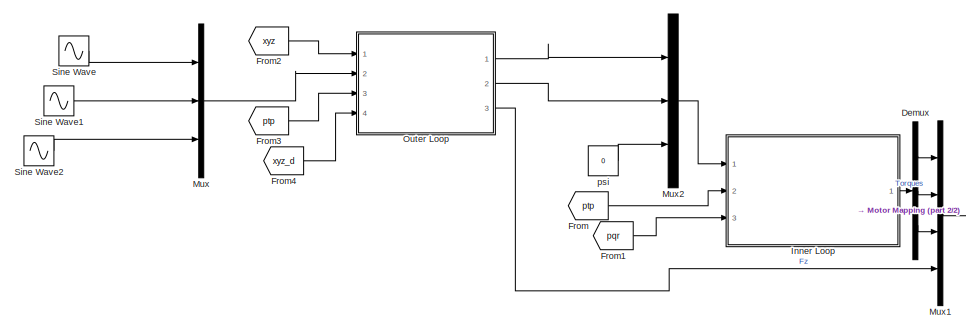
[diagram: root canvas - part 1/2, left side, full height]
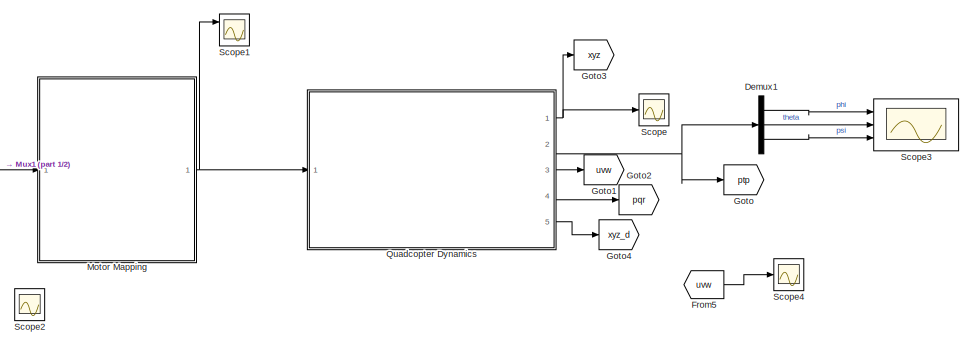
[diagram: root canvas - part 2/2, right side, full height]
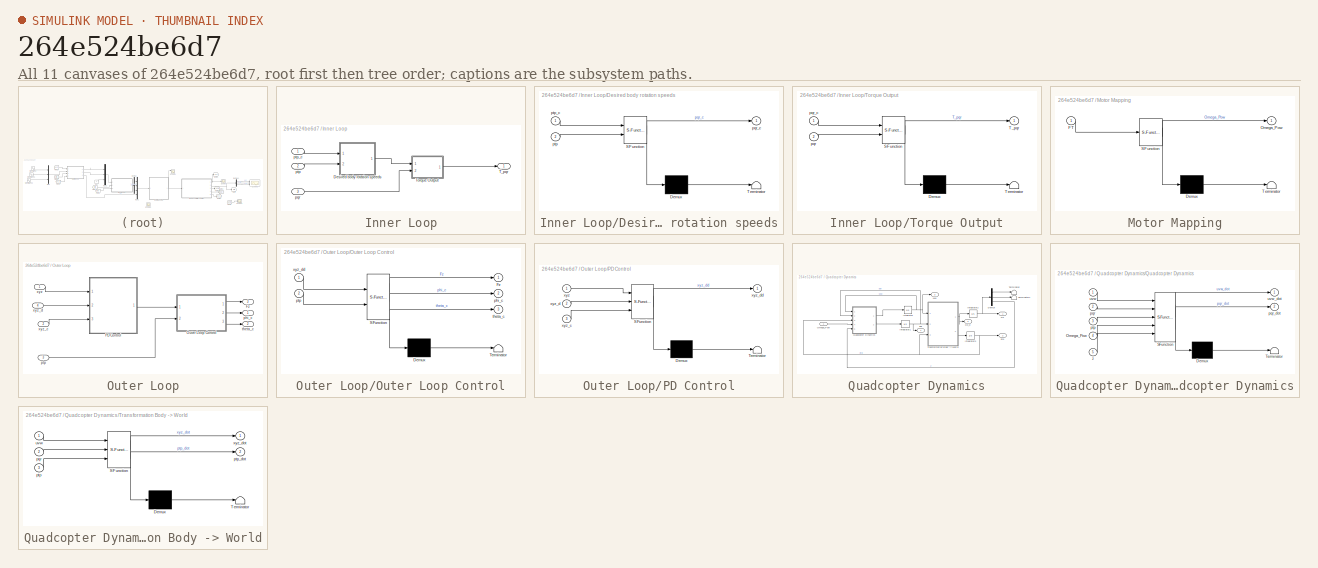
[diagram: thumbnail index - all 11 canvases of the model, root first then tree order]
MODEL slx_264e524be6d7
KIND model
CONFIG AbsTol = auto
CONFIG EnableMultiTasking = off
CONFIG FixedStep = auto
CONFIG MaxStep = auto
CONFIG MinStep = auto
CONFIG RelTol = 1e-3
CONFIG SampleTimeConstraint = Unconstrained
CONFIG Solver = VariableStepAuto
CONFIG SolverName = VariableStepAuto
CONFIG StartTime = 0.0
CONFIG StopTime = 10.0
BLOCK [Demux] Demux
  DisplayOption = bar
  Outputs = 3
  Ports = [1, 3]
BLOCK [Demux] Demux1
  DisplayOption = bar
  Outputs = 3
  Ports = [1, 3]
BLOCK [From] From
  GotoTag = ptp
BLOCK [From] From1
  GotoTag = pqr
BLOCK [From] From2
  GotoTag = xyz
BLOCK [From] From3
  GotoTag = ptp
BLOCK [From] From4
  GotoTag = xyz_d
BLOCK [From] From5
  GotoTag = uvw
BLOCK [Goto] Goto
  GotoTag = ptp
BLOCK [Goto] Goto1
  GotoTag = uvw
BLOCK [Goto] Goto2
  GotoTag = pqr
BLOCK [Goto] Goto3
  GotoTag = xyz
BLOCK [Goto] Goto4
  GotoTag = xyz_d
BLOCK [SubSystem] Inner Loop
  Ports = [3, 1]
  RequestExecContextInheritance = off
BLOCK [SubSystem] Inner Loop/Desired body rotation speeds
  ErrorFcn = Stateflow.Translate.translate
  PermitHierarchicalResolution = ExplicitOnly
  Ports = [2, 1]
  RequestExecContextInheritance = off
  SFBlockType = MATLAB Function
  TreatAsAtomicUnit = on
BLOCK [Demux] Inner Loop/Desired body rotation speeds/ Demux 
  Outputs = 1
  Ports = [1, 1]
BLOCK [S-Function] Inner Loop/Desired body rotation speeds/ SFunction 
  EnableBusSupport = on
  FunctionName = sf_sfun
  PortCounts = [2 2]
  Ports = [2, 2]
  SFcnIsStateOwnerBlock = off
  SFunctionDeploymentMode = off
  Tag = Stateflow S-Function 4
BLOCK [Terminator] Inner Loop/Desired body rotation speeds/ Terminator 
BLOCK [Outport] Inner Loop/Desired body rotation speeds/pqr_c
  IconDisplay = Port number
BLOCK [Inport] Inner Loop/Desired body rotation speeds/ptp
  IconDisplay = Port number
  Port = 2
BLOCK [Inport] Inner Loop/Desired body rotation speeds/ptp_c
  IconDisplay = Port number
BLOCK [Outport] Inner Loop/T_pqr
  IconDisplay = Port number
BLOCK [SubSystem] Inner Loop/Torque Output
  ErrorFcn = Stateflow.Translate.translate
  PermitHierarchicalResolution = ExplicitOnly
  Ports = [2, 1]
  RequestExecContextInheritance = off
  SFBlockType = MATLAB Function
  TreatAsAtomicUnit = on
BLOCK [Demux] Inner Loop/Torque Output/ Demux 
  Outputs = 1
  Ports = [1, 1]
BLOCK [S-Function] Inner Loop/Torque Output/ SFunction 
  EnableBusSupport = on
  FunctionName = sf_sfun
  PortCounts = [2 2]
  Ports = [2, 2]
  SFcnIsStateOwnerBlock = off
  SFunctionDeploymentMode = off
  Tag = Stateflow S-Function 5
BLOCK [Terminator] Inner Loop/Torque Output/ Terminator 
BLOCK [Outport] Inner Loop/Torque Output/T_pqr
  IconDisplay = Port number
BLOCK [Inport] Inner Loop/Torque Output/pqr
  IconDisplay = Port number
  Port = 2
BLOCK [Inport] Inner Loop/Torque Output/pqr_c
  IconDisplay = Port number
BLOCK [Inport] Inner Loop/pqr
  IconDisplay = Port number
  Port = 3
BLOCK [Inport] Inner Loop/ptp
  IconDisplay = Port number
  Port = 2
BLOCK [Inport] Inner Loop/ptp_c
  IconDisplay = Port number
BLOCK [SubSystem] Motor Mapping
  ErrorFcn = Stateflow.Translate.translate
  PermitHierarchicalResolution = ExplicitOnly
  Ports = [1, 1]
  RequestExecContextInheritance = off
  SFBlockType = MATLAB Function
  TreatAsAtomicUnit = on
BLOCK [Demux] Motor Mapping/ Demux 
  Outputs = 1
  Ports = [1, 1]
BLOCK [S-Function] Motor Mapping/ SFunction 
  EnableBusSupport = on
  FunctionName = sf_sfun
  PortCounts = [1 2]
  Ports = [1, 2]
  SFcnIsStateOwnerBlock = off
  SFunctionDeploymentMode = off
  Tag = Stateflow S-Function 3
BLOCK [Terminator] Motor Mapping/ Terminator 
BLOCK [Inport] Motor Mapping/FT
  IconDisplay = Port number
BLOCK [Outport] Motor Mapping/Omega_Pow
  IconDisplay = Port number
BLOCK [Mux] Mux
  DisplayOption = bar
  Inputs = 3
  Ports = [3, 1]
BLOCK [Mux] Mux1
  DisplayOption = bar
  Ports = [4, 1]
BLOCK [Mux] Mux2
  DisplayOption = bar
  Inputs = 3
  Ports = [3, 1]
BLOCK [SubSystem] Outer Loop
  Ports = [4, 3]
  RequestExecContextInheritance = off
BLOCK [Outport] Outer Loop/Fz
  IconDisplay = Port number
  Port = 3
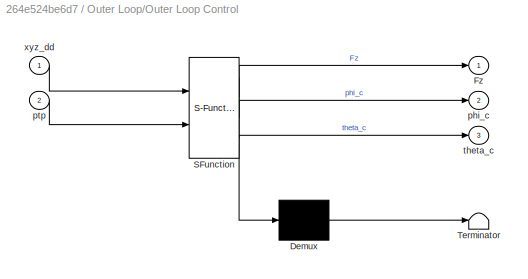
BLOCK [SubSystem] Outer Loop/Outer Loop Control
  ErrorFcn = Stateflow.Translate.translate
  PermitHierarchicalResolution = ExplicitOnly
  Ports = [2, 3]
  RequestExecContextInheritance = off
  SFBlockType = MATLAB Function
  TreatAsAtomicUnit = on
BLOCK [Demux] Outer Loop/Outer Loop Control/ Demux 
  Outputs = 1
  Ports = [1, 1]
BLOCK [S-Function] Outer Loop/Outer Loop Control/ SFunction 
  EnableBusSupport = on
  FunctionName = sf_sfun
  PortCounts = [2 4]
  Ports = [2, 4]
  SFcnIsStateOwnerBlock = off
  SFunctionDeploymentMode = off
  Tag = Stateflow S-Function 6
BLOCK [Terminator] Outer Loop/Outer Loop Control/ Terminator 
BLOCK [Outport] Outer Loop/Outer Loop Control/Fz
  IconDisplay = Port number
BLOCK [Outport] Outer Loop/Outer Loop Control/phi_c
  IconDisplay = Port number
  Port = 2
BLOCK [Inport] Outer Loop/Outer Loop Control/ptp
  IconDisplay = Port number
  Port = 2
BLOCK [Outport] Outer Loop/Outer Loop Control/theta_c
  IconDisplay = Port number
  Port = 3
BLOCK [Inport] Outer Loop/Outer Loop Control/xyz_dd
  IconDisplay = Port number
BLOCK [SubSystem] Outer Loop/PD Control
  ErrorFcn = Stateflow.Translate.translate
  PermitHierarchicalResolution = ExplicitOnly
  Ports = [3, 1]
  RequestExecContextInheritance = off
  SFBlockType = MATLAB Function
  TreatAsAtomicUnit = on
BLOCK [Demux] Outer Loop/PD Control/ Demux 
  Outputs = 1
  Ports = [1, 1]
BLOCK [S-Function] Outer Loop/PD Control/ SFunction 
  EnableBusSupport = on
  FunctionName = sf_sfun
  PortCounts = [3 2]
  Ports = [3, 2]
  SFcnIsStateOwnerBlock = off
  SFunctionDeploymentMode = off
  Tag = Stateflow S-Function 7
BLOCK [Terminator] Outer Loop/PD Control/ Terminator 
BLOCK [Inport] Outer Loop/PD Control/xyz
  IconDisplay = Port number
BLOCK [Inport] Outer Loop/PD Control/xyz_c
  IconDisplay = Port number
  Port = 3
BLOCK [Inport] Outer Loop/PD Control/xyz_d
  IconDisplay = Port number
  Port = 2
BLOCK [Outport] Outer Loop/PD Control/xyz_dd
  IconDisplay = Port number
BLOCK [Outport] Outer Loop/phi_c
  IconDisplay = Port number
BLOCK [Inport] Outer Loop/ptp
  IconDisplay = Port number
  Port = 3
BLOCK [Outport] Outer Loop/theta_c
  IconDisplay = Port number
  Port = 2
BLOCK [Inport] Outer Loop/xyz
  IconDisplay = Port number
BLOCK [Inport] Outer Loop/xyz_c
  IconDisplay = Port number
  Port = 2
BLOCK [Inport] Outer Loop/xyz_d
  IconDisplay = Port number
  Port = 4
BLOCK [SubSystem] Quadcopter Dynamics
  Ports = [1, 5]
  RequestExecContextInheritance = off
BLOCK [Demux] Quadcopter Dynamics/Demux
  DisplayOption = bar
  Outputs = 3
  Ports = [1, 3]
BLOCK [Integrator] Quadcopter Dynamics/Integrator
  InitialCondition = [0.001; 0.001; 0.001]
  Ports = [1, 1]
BLOCK [Integrator] Quadcopter Dynamics/Integrator1
  InitialCondition = [0.001;0.001;0.001]
  Ports = [1, 1]
BLOCK [Integrator] Quadcopter Dynamics/Integrator2
  Ports = [1, 1]
BLOCK [Integrator] Quadcopter Dynamics/Integrator3
  InitialCondition = [0.001; 0.001; 0.001]
  Ports = [1, 1]
BLOCK [Inport] Quadcopter Dynamics/Omega_Pow
  IconDisplay = Port number
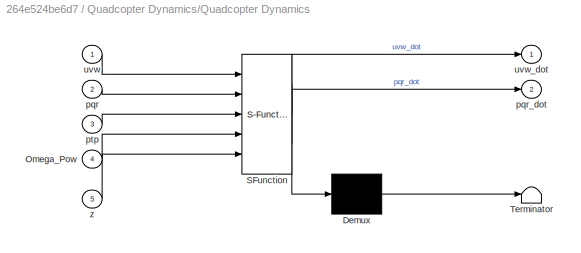
BLOCK [SubSystem] Quadcopter Dynamics/Quadcopter Dynamics
  ErrorFcn = Stateflow.Translate.translate
  PermitHierarchicalResolution = ExplicitOnly
  Ports = [5, 2]
  RequestExecContextInheritance = off
  SFBlockType = MATLAB Function
  TreatAsAtomicUnit = on
BLOCK [Demux] Quadcopter Dynamics/Quadcopter Dynamics/ Demux 
  Outputs = 1
  Ports = [1, 1]
BLOCK [S-Function] Quadcopter Dynamics/Quadcopter Dynamics/ SFunction 
  EnableBusSupport = on
  FunctionName = sf_sfun
  PortCounts = [5 3]
  Ports = [5, 3]
  SFcnIsStateOwnerBlock = off
  SFunctionDeploymentMode = off
  Tag = Stateflow S-Function 2
BLOCK [Terminator] Quadcopter Dynamics/Quadcopter Dynamics/ Terminator 
BLOCK [Inport] Quadcopter Dynamics/Quadcopter Dynamics/Omega_Pow
  IconDisplay = Port number
  Port = 4
BLOCK [Inport] Quadcopter Dynamics/Quadcopter Dynamics/pqr
  IconDisplay = Port number
  Port = 2
BLOCK [Outport] Quadcopter Dynamics/Quadcopter Dynamics/pqr_dot
  IconDisplay = Port number
  Port = 2
BLOCK [Inport] Quadcopter Dynamics/Quadcopter Dynamics/ptp
  IconDisplay = Port number
  Port = 3
BLOCK [Inport] Quadcopter Dynamics/Quadcopter Dynamics/uvw
  IconDisplay = Port number
BLOCK [Outport] Quadcopter Dynamics/Quadcopter Dynamics/uvw_dot
  IconDisplay = Port number
BLOCK [Inport] Quadcopter Dynamics/Quadcopter Dynamics/z
  IconDisplay = Port number
  Port = 5
BLOCK [Terminator] Quadcopter Dynamics/Terminator
BLOCK [Terminator] Quadcopter Dynamics/Terminator1
BLOCK [SubSystem] Quadcopter Dynamics/Transformation Body -> World
  ErrorFcn = Stateflow.Translate.translate
  PermitHierarchicalResolution = ExplicitOnly
  Ports = [3, 2]
  RequestExecContextInheritance = off
  SFBlockType = MATLAB Function
  TreatAsAtomicUnit = on
BLOCK [Demux] Quadcopter Dynamics/Transformation Body -> World/ Demux 
  Outputs = 1
  Ports = [1, 1]
BLOCK [S-Function] Quadcopter Dynamics/Transformation Body -> World/ SFunction 
  EnableBusSupport = on
  FunctionName = sf_sfun
  PortCounts = [3 3]
  Ports = [3, 3]
  SFcnIsStateOwnerBlock = off
  SFunctionDeploymentMode = off
  Tag = Stateflow S-Function 1
BLOCK [Terminator] Quadcopter Dynamics/Transformation Body -> World/ Terminator 
BLOCK [Inport] Quadcopter Dynamics/Transformation Body -> World/pqr
  IconDisplay = Port number
  Port = 2
BLOCK [Inport] Quadcopter Dynamics/Transformation Body -> World/ptp
  IconDisplay = Port number
  Port = 3
BLOCK [Outport] Quadcopter Dynamics/Transformation Body -> World/ptp_dot
  IconDisplay = Port number
  Port = 2
BLOCK [Inport] Quadcopter Dynamics/Transformation Body -> World/uvw
  IconDisplay = Port number
BLOCK [Outport] Quadcopter Dynamics/Transformation Body -> World/xyz_dot
  IconDisplay = Port number
BLOCK [Outport] Quadcopter Dynamics/pqr
  IconDisplay = Port number
  Port = 4
BLOCK [Outport] Quadcopter Dynamics/ptp
  IconDisplay = Port number
  Port = 2
BLOCK [Outport] Quadcopter Dynamics/uvw
  IconDisplay = Port number
  Port = 3
BLOCK [Outport] Quadcopter Dynamics/xyz
  IconDisplay = Port number
BLOCK [Outport] Quadcopter Dynamics/xyz_d
  IconDisplay = Port number
  Port = 5
BLOCK [Scope] Scope
  Floating = off
  NumInputPorts = 1
  Ports = [1]
  ScopeSpecificationString = Simulink.scopes.TimeScopeBlockCfg('CurrentConfiguration', extmgr.ConfigurationSet(extmgr.Configuration('Core','General UI',true),extmgr.Configuration('Core','Source UI',true),extmgr.Configuration('Sources','WiredSimulink',true),extmgr.Configuration('Visuals','Time Domain',true,'SerializedDisplays',{struct('MinYLimReal','-0.25535','MaxYLimReal','0.12482','YLabelReal','','MinYLimMag','0.00000','MaxY...<+1465ch>
BLOCK [Scope] Scope1
  Floating = off
  NumInputPorts = 3
  Ports = [3]
  ScopeSpecificationString = Simulink.scopes.TimeScopeBlockCfg('CurrentConfiguration', extmgr.ConfigurationSet(extmgr.Configuration('Core','General UI',true),extmgr.Configuration('Core','Source UI',true),extmgr.Configuration('Sources','WiredSimulink',true,'DataLoggingVariableName','ScopeData1'),extmgr.Configuration('Visuals','Time Domain',true,'SerializedDisplays',{struct('MinYLimReal','-10511119.74899','MaxYLimReal','1060275...<+1812ch>
BLOCK [Scope] Scope2
  Floating = off
  NumInputPorts = 1
  Ports = [1]
  ScopeSpecificationString = Simulink.scopes.TimeScopeBlockCfg('CurrentConfiguration', extmgr.ConfigurationSet(extmgr.Configuration('Core','General UI',true),extmgr.Configuration('Core','Source UI',true),extmgr.Configuration('Sources','WiredSimulink',true,'DataLoggingVariableName','ScopeData2'),extmgr.Configuration('Visuals','Time Domain',true,'SerializedDisplays',{struct('MinYLimReal','-1.00000','MaxYLimReal','1.00000','YLab...<+1401ch>
BLOCK [Scope] Scope3
  Floating = off
  NumInputPorts = 3
  Ports = [3]
  ScopeSpecificationString = Simulink.scopes.TimeScopeBlockCfg('CurrentConfiguration', extmgr.ConfigurationSet(extmgr.Configuration('Core','General UI',true),extmgr.Configuration('Core','Source UI',true),extmgr.Configuration('Sources','WiredSimulink',true,'DataLoggingVariableName','ScopeData3'),extmgr.Configuration('Visuals','Time Domain',true,'SerializedDisplays',{struct('MinYLimReal','-1485.15659','MaxYLimReal','13158.69841...<+1541ch>
BLOCK [Scope] Scope4
  Floating = off
  NumInputPorts = 1
  Ports = [1]
  ScopeSpecificationString = Simulink.scopes.TimeScopeBlockCfg('CurrentConfiguration', extmgr.ConfigurationSet(extmgr.Configuration('Core','General UI',true),extmgr.Configuration('Core','Source UI',true),extmgr.Configuration('Sources','WiredSimulink',true,'DataLoggingVariableName','ScopeData1'),extmgr.Configuration('Visuals','Time Domain',true,'SerializedDisplays',{struct('MinYLimReal','-5202989373.04761','MaxYLimReal','67187...<+1456ch>
BLOCK [Sin] Sine Wave
  Ports = [0, 1]
  SampleTime = 0
BLOCK [Sin] Sine Wave1
  Ports = [0, 1]
  SampleTime = 0
BLOCK [Sin] Sine Wave2
  Ports = [0, 1]
  SampleTime = 0
BLOCK [Constant] psi
  Value = 0
LINE Demux1:1 -> Scope3:1
LINE Demux1:2 -> Scope3:2
LINE Demux1:3 -> Scope3:3
LINE Demux:1 -> Mux1:1
LINE Demux:2 -> Mux1:2
LINE Demux:3 -> Mux1:3
LINE From1:1 -> Inner Loop:3
LINE From2:1 -> Outer Loop:1
LINE From3:1 -> Outer Loop:3
LINE From4:1 -> Outer Loop:4
LINE From5:1 -> Scope4:1
LINE From:1 -> Inner Loop:2
LINE Inner Loop/Desired body rotation speeds:1 -> Inner Loop/Torque Output:1
LINE Inner Loop/Torque Output:1 -> Inner Loop/T_pqr:1
LINE Inner Loop/pqr:1 -> Inner Loop/Torque Output:2
LINE Inner Loop/ptp:1 -> Inner Loop/Desired body rotation speeds:2
LINE Inner Loop/ptp_c:1 -> Inner Loop/Desired body rotation speeds:1
LINE Inner Loop:1 -> Demux:1
NET Motor Mapping:1 -> Quadcopter Dynamics:1, Scope1:1
LINE Mux1:1 -> Motor Mapping:1
LINE Mux2:1 -> Inner Loop:1
LINE Mux:1 -> Outer Loop:2
LINE Outer Loop/Outer Loop Control:1 -> Outer Loop/Fz:1
LINE Outer Loop/Outer Loop Control:2 -> Outer Loop/phi_c:1
LINE Outer Loop/Outer Loop Control:3 -> Outer Loop/theta_c:1
LINE Outer Loop/PD Control:1 -> Outer Loop/Outer Loop Control:1
LINE Outer Loop/ptp:1 -> Outer Loop/Outer Loop Control:2
LINE Outer Loop/xyz:1 -> Outer Loop/PD Control:1
LINE Outer Loop/xyz_c:1 -> Outer Loop/PD Control:3
LINE Outer Loop/xyz_d:1 -> Outer Loop/PD Control:2
LINE Outer Loop:1 -> Mux2:1
LINE Outer Loop:2 -> Mux2:2
LINE Outer Loop:3 -> Mux1:4
LINE Quadcopter Dynamics/Demux:1 -> Quadcopter Dynamics/Terminator:1
LINE Quadcopter Dynamics/Demux:2 -> Quadcopter Dynamics/Terminator1:1
LINE Quadcopter Dynamics/Demux:3 -> Quadcopter Dynamics/Quadcopter Dynamics:5
NET Quadcopter Dynamics/Integrator1:1 -> Quadcopter Dynamics/Quadcopter Dynamics:2, Quadcopter Dynamics/Transformation Body -> World:2, Quadcopter Dynamics/pqr:1
NET Quadcopter Dynamics/Integrator2:1 -> Quadcopter Dynamics/Demux:1, Quadcopter Dynamics/xyz:1
NET Quadcopter Dynamics/Integrator3:1 -> Quadcopter Dynamics/Quadcopter Dynamics:3, Quadcopter Dynamics/Transformation Body -> World:3, Quadcopter Dynamics/ptp:1
NET Quadcopter Dynamics/Integrator:1 -> Quadcopter Dynamics/Quadcopter Dynamics:1, Quadcopter Dynamics/Transformation Body -> World:1, Quadcopter Dynamics/uvw:1
LINE Quadcopter Dynamics/Omega_Pow:1 -> Quadcopter Dynamics/Quadcopter Dynamics:4
LINE Quadcopter Dynamics/Quadcopter Dynamics:1 -> Quadcopter Dynamics/Integrator:1
LINE Quadcopter Dynamics/Quadcopter Dynamics:2 -> Quadcopter Dynamics/Integrator1:1
NET Quadcopter Dynamics/Transformation Body -> World:1 -> Quadcopter Dynamics/Integrator2:1, Quadcopter Dynamics/xyz_d:1
LINE Quadcopter Dynamics/Transformation Body -> World:2 -> Quadcopter Dynamics/Integrator3:1
NET Quadcopter Dynamics:1 -> Goto3:1, Scope:1
NET Quadcopter Dynamics:2 -> Demux1:1, Goto:1
LINE Quadcopter Dynamics:3 -> Goto1:1
LINE Quadcopter Dynamics:4 -> Goto2:1
LINE Quadcopter Dynamics:5 -> Goto4:1
LINE Sine Wave1:1 -> Mux:2
LINE Sine Wave2:1 -> Mux:3
LINE Sine Wave:1 -> Mux:1
LINE psi:1 -> Mux2:3
note: NET lines group one-source signal fan-out (src -> all destinations, sorted); 1:1 wires keep LINE
CHART Quadcopter Dynamics/Transformation Body -> World states=1 transitions=1
  STATE_LABEL 'eML_blk_kernel()'
  STATE_LABEL 'SCRIPT:\nfunction [xyz_dot,ptp_dot] = fcn(uvw,pqr,ptp)\n%{\nThis code transforms the body frame velocities to the world frame\nvelocities\n\nINPUTS:\n    uvw - 3x1 vector of body transl. velocities u, v, w\n    pqr - 3x1 vector of body rotat. velocities, p, q, r\n\nOUTPUTS:\n    xyz_dot - 3x1 vector of world transl. velocities x_dot, y_dot, z_dot\n    ptp_dot -3x1 vector of world derivative orientations, phi,...<+1224ch>'
CHART Quadcopter Dynamics/Quadcopter Dynamics states=1 transitions=1
  STATE_LABEL 'eML_blk_kernel()'
  STATE_LABEL 'SCRIPT:\nfunction [uvw_dot, pqr_dot] = fcn(uvw,pqr,ptp,Omega_Pow,z)\n%{\nThis code simulates the body dyanics of a quadcopter\nINPUTS:\n    uvw - 3x1 vector of body fixed translation velocities u, v, w\n    pqr - 3x1 vector of body fixed rotation velocities p, q, r\n    ptp - 3x1 vector of world fixed orientations phi, theta, psi\n    Omega_Pow - 4x1 vector of  propeller angular velocities\n\nOUTPUTS:\n    u...<+1675ch>'
CHART Motor Mapping states=1 transitions=1
  STATE_LABEL 'eML_blk_kernel()'
  STATE_LABEL 'SCRIPT:\nfunction Omega_Pow = fcn(FT)\n%{\nThis function takes the desired forces and maps them to the proppeller\nspeed. This is important because angular velocity is easily measured\ncompared to the thrust forces\n\nINPUTS:\n    FT - 4x1 desired force vector Tp, Tq, Tr, Fz\n\nOUTPUTS:\n    Omega_Pow2 = 4x1 vector of  angular velocities of propellers\n%}\n% CONSTANTS\nm = 2.3;              % Mass [kg]\nL = 0.7;...<+851ch>'
CHART Inner Loop/Desired body rotation speeds states=1 transitions=1
  STATE_LABEL 'eML_blk_kernel()'
  STATE_LABEL 'SCRIPT:\nfunction pqr_c = fcn(ptp_c,ptp)\n%{\nThis function takes in the desired attidue angles and the attitude angles\nof the quadcopter and determines the desired body rotation velocities\n% INPUTS:\n    ptp_c - 3x1 vector of desired attitude (orientation) angles\n    ptp - 3x1 vector of attitude angle phi, theta, psi\n% OUTPUTS \n    pqr_c - 3x1 vector of desired body frame rotation velocities p, q, r\n...<+1225ch>'
CHART Inner Loop/Torque Output states=1 transitions=1
  STATE_LABEL 'eML_blk_kernel()'
  STATE_LABEL 'SCRIPT:\nfunction T_pqr = fcn( pqr_c,pqr)\n\n% CONSTANTS:\nm = 2.3;              % Mass [kg]\nL = 0.7;              % Lever arm length [m]\nIxx = 8.04*10^(-3);   % Body inertia of x axis [kg*m^2]\nIyy = 8.46*10^(-3);   % Body inertia of y axis [kg*m^2]\nIzz = 14.68*10^(-3);  % Body inertia of y axis [kg*m^2]\nk_f = 0.65016*10^(-3);    % Force Coeffecient [N/(rad/s)^2]\nk_t = 0.82218*10^(-5);     % Torque Co...<+697ch>'
CHART Outer Loop/Outer Loop Control states=1 transitions=1
  STATE_LABEL 'eML_blk_kernel()'
  STATE_LABEL 'SCRIPT:\nfunction [Fz, phi_c, theta_c] = fcn(xyz_dd,ptp)\n%{\nThis function takes the control inputs xyz_dd and the oreintation of the\nquadcopter to determine the Fz and phi and theta control\ninputs\n\n% INPUTS:\n    xyz_dd - 3x1 vector of control input accelerations\n    ptp - 3x1 vector of world frame orientation\n\n% OUTPUTS:\n    Fz - desired force in Z\n    phi_c - desired orientation in phi\n    theta_c...<+1029ch>'
CHART Outer Loop/PD Control states=1 transitions=1
  STATE_LABEL 'eML_blk_kernel()'
  STATE_LABEL 'SCRIPT:\nfunction xyz_dd = fcn(xyz,xyz_d,xyz_c)\n%{\nThis function uses PD control to determine control vector of accelereations\n\nINPUTS:\n    xyz - 3x1 vector of quadcopter position\n    xyz_c - 3x1 vector of desired quadcopter position\n    xyz_dd - 3x1 vector of quadcopter world velocities\n\nOUTPUTS:\n    xyz_dd - 3x1 vector of control accelerations\n%}\n% CONTROL CONSTANTS:\nnat_freq = 1;   % Natural Fre...<+428ch>'
